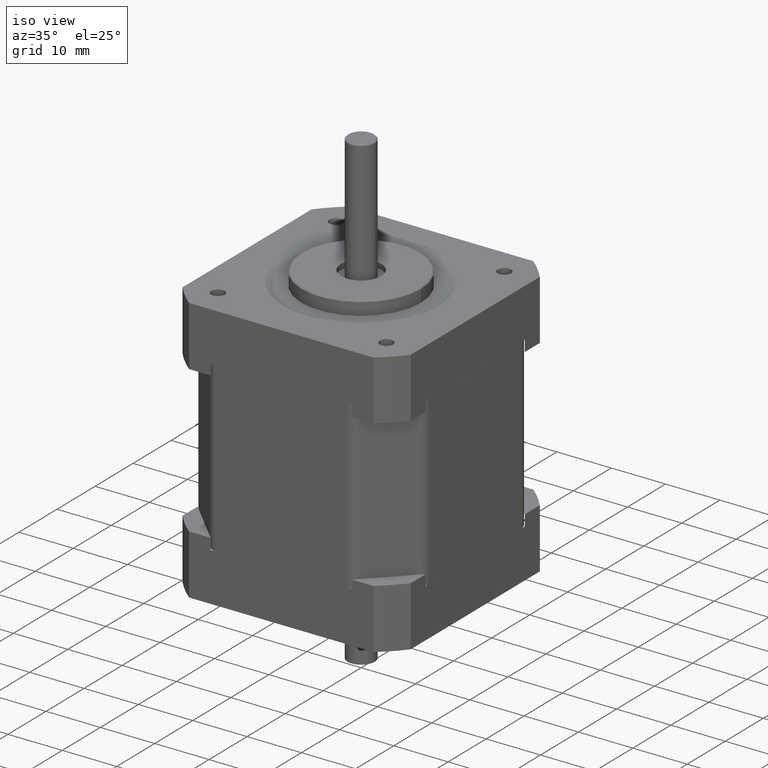
[diagram: clean part render]
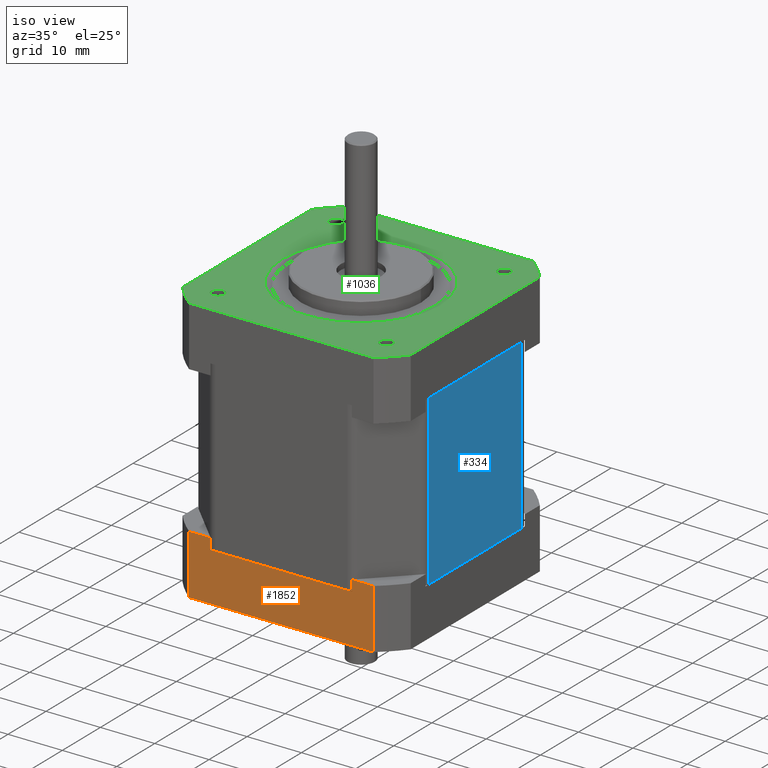
[diagram: same view with three faces highlighted in distinct colors, each labeled with its STEP entity id]
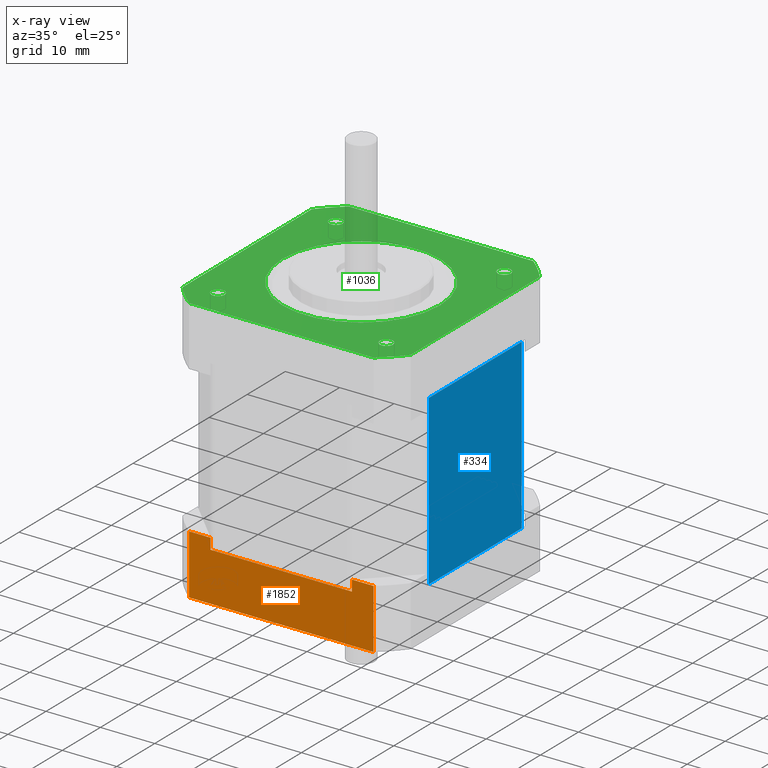
[diagram: x-ray of the same camera — body ghosted, the three highlighted faces saturated]
A machine part, iso view with three faces highlighted in distinct colors.
The next image is the same camera in x-ray (body ghosted, the three faces saturated) — at least one of them is partly hidden behind the body in this view.
Their STEP definitions:

[orange] entity #1852 — the highlighted planar face has unit normal (0, -1, 0).
#1658=CARTESIAN_POINT('',(13.000000000000023,-20.999999999999975,-13.750000000000007));
#1659=VERTEX_POINT('',#1658);
#1666=CARTESIAN_POINT('',(16.970562748477136,-21.000000000000007,-13.750000000000007));
#1667=VERTEX_POINT('',#1666);
#1668=CARTESIAN_POINT('',(13.000000000000023,-20.999999999999975,-13.750000000000007));
#1669=DIRECTION('',(1.0,0.0,0.0));
#1670=VECTOR('',#1669,3.970562748477112);
#1671=LINE('',#1668,#1670);
#1672=EDGE_CURVE('',#1659,#1667,#1671,.T.);
#1690=CARTESIAN_POINT('',(-12.999999999999973,-20.999999999999982,-13.750000000000007));
#1691=VERTEX_POINT('',#1690);
#1708=CARTESIAN_POINT('',(-16.970562748477139,-21.000000000000007,-13.750000000000007));
#1709=VERTEX_POINT('',#1708);
#1717=CARTESIAN_POINT('',(-16.970562748477139,-21.000000000000007,-13.750000000000007));
#1718=DIRECTION('',(1.0,0.0,0.0));
#1719=VECTOR('',#1718,3.970562748477164);
#1720=LINE('',#1717,#1719);
#1721=EDGE_CURVE('',#1709,#1691,#1720,.T.);
#1799=CARTESIAN_POINT('',(-16.970562748477139,-21.000000000000007,-13.750000000000007));
#1800=DIRECTION('',(0.0,-1.0,0.0));
#1801=DIRECTION('',(0.0,0.0,-1.0));
#1802=AXIS2_PLACEMENT_3D('',#1799,#1800,#1801);
#1803=PLANE('',#1802);
#1804=CARTESIAN_POINT('',(13.000000000000023,-20.999999999999975,-15.750000000000007));
#1805=VERTEX_POINT('',#1804);
#1806=CARTESIAN_POINT('',(13.000000000000023,-20.999999999999975,-13.750000000000007));
#1807=DIRECTION('',(0.0,0.0,-1.0));
#1808=VECTOR('',#1807,2.0);
#1809=LINE('',#1806,#1808);
#1810=EDGE_CURVE('',#1659,#1805,#1809,.T.);
#1811=ORIENTED_EDGE('',*,*,#1810,.T.);
#1812=CARTESIAN_POINT('',(-12.999999999999973,-20.999999999999982,-15.750000000000007));
#1813=VERTEX_POINT('',#1812);
#1814=CARTESIAN_POINT('',(13.000000000000023,-20.999999999999975,-15.750000000000007));
#1815=DIRECTION('',(-1.0,0.0,0.0));
#1816=VECTOR('',#1815,25.999999999999996);
#1817=LINE('',#1814,#1816);
#1818=EDGE_CURVE('',#1805,#1813,#1817,.T.);
#1819=ORIENTED_EDGE('',*,*,#1818,.T.);
#1820=CARTESIAN_POINT('',(-12.999999999999973,-20.999999999999982,-15.750000000000007));
#1821=DIRECTION('',(0.0,0.0,1.0));
#1822=VECTOR('',#1821,2.0);
#1823=LINE('',#1820,#1822);
#1824=EDGE_CURVE('',#1813,#1691,#1823,.T.);
#1825=ORIENTED_EDGE('',*,*,#1824,.T.);
#1826=ORIENTED_EDGE('',*,*,#1721,.F.);
#1827=CARTESIAN_POINT('',(-16.970562748477139,-21.000000000000007,-24.750000000000007));
#1828=VERTEX_POINT('',#1827);
#1829=CARTESIAN_POINT('',(-16.970562748477139,-21.000000000000007,-13.750000000000007));
#1830=DIRECTION('',(0.0,0.0,-1.0));
#1831=VECTOR('',#1830,11.0);
#1832=LINE('',#1829,#1831);
#1833=EDGE_CURVE('',#1709,#1828,#1832,.T.);
#1834=ORIENTED_EDGE('',*,*,#1833,.T.);
#1835=CARTESIAN_POINT('',(16.970562748477136,-21.000000000000007,-24.750000000000007));
#1836=VERTEX_POINT('',#1835);
#1837=CARTESIAN_POINT('',(-16.970562748477139,-21.000000000000007,-24.750000000000007));
#1838=DIRECTION('',(1.0,0.0,0.0));
#1839=VECTOR('',#1838,33.941125496954271);
#1840=LINE('',#1837,#1839);
#1841=EDGE_CURVE('',#1828,#1836,#1840,.T.);
#1842=ORIENTED_EDGE('',*,*,#1841,.T.);
#1843=CARTESIAN_POINT('',(16.970562748477136,-21.000000000000007,-13.750000000000007));
#1844=DIRECTION('',(0.0,0.0,-1.0));
#1845=VECTOR('',#1844,11.0);
#1846=LINE('',#1843,#1845);
#1847=EDGE_CURVE('',#1667,#1836,#1846,.T.);
#1848=ORIENTED_EDGE('',*,*,#1847,.F.);
#1849=ORIENTED_EDGE('',*,*,#1672,.F.);
#1850=EDGE_LOOP('',(#1811,#1819,#1825,#1826,#1834,#1842,#1848,#1849));
#1851=FACE_OUTER_BOUND('',#1850,.T.);
#1852=ADVANCED_FACE('',(#1851),#1803,.T.);

[blue] entity #334 — the highlighted planar face has unit normal (1, 0, 0).
#276=CARTESIAN_POINT('',(20.999999999999993,12.171572875253833,15.250000000000011));
#277=VERTEX_POINT('',#276);
#285=CARTESIAN_POINT('',(20.999999999999993,12.171572875253833,-15.750000000000007));
#286=VERTEX_POINT('',#285);
#287=CARTESIAN_POINT('',(20.999999999999993,12.171572875253833,15.250000000000011));
#288=DIRECTION('',(0.0,0.0,-1.0));
#289=VECTOR('',#288,31.000000000000018);
#290=LINE('',#287,#289);
#291=EDGE_CURVE('',#277,#286,#290,.T.);
#304=CARTESIAN_POINT('',(20.999999999999993,13.000000000000025,0.0));
#305=DIRECTION('',(1.0,0.0,0.0));
#306=DIRECTION('',(0.0,0.0,-1.0));
#307=AXIS2_PLACEMENT_3D('',#304,#305,#306);
#308=PLANE('',#307);
#309=CARTESIAN_POINT('',(21.000000000000014,-12.171572875253791,15.250000000000007));
#310=VERTEX_POINT('',#309);
#311=CARTESIAN_POINT('',(20.999999999999993,12.171572875253833,15.250000000000011));
#312=DIRECTION('',(0.0,-1.0,0.0));
#313=VECTOR('',#312,24.343145750507624);
#314=LINE('',#311,#313);
#315=EDGE_CURVE('',#277,#310,#314,.T.);
#316=ORIENTED_EDGE('',*,*,#315,.T.);
#317=CARTESIAN_POINT('',(21.000000000000014,-12.171572875253791,-15.750000000000007));
#318=VERTEX_POINT('',#317);
#319=CARTESIAN_POINT('',(21.000000000000014,-12.171572875253791,-15.750000000000007));
#320=DIRECTION('',(0.0,0.0,1.0));
#321=VECTOR('',#320,31.000000000000014);
#322=LINE('',#319,#321);
#323=EDGE_CURVE('',#318,#310,#322,.T.);
#324=ORIENTED_EDGE('',*,*,#323,.F.);
#325=CARTESIAN_POINT('',(21.000000000000014,-12.171572875253791,-15.750000000000007));
#326=DIRECTION('',(0.0,1.0,0.0));
#327=VECTOR('',#326,24.343145750507624);
#328=LINE('',#325,#327);
#329=EDGE_CURVE('',#318,#286,#328,.T.);
#330=ORIENTED_EDGE('',*,*,#329,.T.);
#331=ORIENTED_EDGE('',*,*,#291,.F.);
#332=EDGE_LOOP('',(#316,#324,#330,#331));
#333=FACE_OUTER_BOUND('',#332,.T.);
#334=ADVANCED_FACE('',(#333),#308,.T.);

[green] entity #1036 — the highlighted planar face has unit normal (0, 0, 1).
#671=CARTESIAN_POINT('',(21.000000000000011,16.970562748477139,24.250000000000007));
#672=VERTEX_POINT('',#671);
#679=CARTESIAN_POINT('',(21.0,-16.970562748477139,24.250000000000007));
#680=VERTEX_POINT('',#679);
#681=CARTESIAN_POINT('',(21.000000000000011,16.970562748477139,24.250000000000007));
#682=DIRECTION('',(0.0,-1.0,0.0));
#683=VECTOR('',#682,33.941125496954278);
#684=LINE('',#681,#683);
#685=EDGE_CURVE('',#672,#680,#684,.T.);
#878=CARTESIAN_POINT('',(-16.970562748477146,21.0,24.250000000000007));
#879=VERTEX_POINT('',#878);
#886=CARTESIAN_POINT('',(16.970562748477139,21.000000000000011,24.250000000000007));
#887=VERTEX_POINT('',#886);
#888=CARTESIAN_POINT('',(-16.970562748477146,21.0,24.250000000000007));
#889=DIRECTION('',(1.0,0.0,0.0));
#890=VECTOR('',#889,33.941125496954285);
#891=LINE('',#888,#890);
#892=EDGE_CURVE('',#879,#887,#891,.T.);
#920=CARTESIAN_POINT('',(14.500000000000007,1.775679E-015,24.250000000000007));
#921=VERTEX_POINT('',#920);
#922=CARTESIAN_POINT('',(-1.403331E-048,-2.692370E-032,24.250000000000007));
#923=DIRECTION('',(0.0,0.0,1.0));
#924=DIRECTION('',(-1.0,0.0,0.0));
#925=AXIS2_PLACEMENT_3D('',#922,#923,#924);
#926=CIRCLE('',#925,14.500000000000007);
#927=EDGE_CURVE('',#921,#921,#926,.T.);
#932=CARTESIAN_POINT('',(4.006830E-016,3.330669E-015,24.250000000000007));
#933=DIRECTION('',(0.0,0.0,1.0));
#934=DIRECTION('',(1.0,0.0,0.0));
#935=AXIS2_PLACEMENT_3D('',#932,#933,#934);
#936=PLANE('',#935);
#937=ORIENTED_EDGE('',*,*,#892,.F.);
#938=CARTESIAN_POINT('',(-21.000000000000011,16.970562748477139,24.250000000000007));
#939=VERTEX_POINT('',#938);
#940=CARTESIAN_POINT('',(-1.403331E-048,-2.692370E-032,24.250000000000007));
#941=DIRECTION('',(-1.253526E-033,1.551160E-033,-1.0));
#942=DIRECTION('',(-0.628539361054709,0.777777777777778,1.994348E-033));
#943=AXIS2_PLACEMENT_3D('',#940,#941,#942);
#944=CIRCLE('',#943,27.0);
#945=EDGE_CURVE('',#939,#879,#944,.T.);
#946=ORIENTED_EDGE('',*,*,#945,.F.);
#947=CARTESIAN_POINT('',(-21.000000000000011,-16.970562748477136,24.250000000000007));
#948=VERTEX_POINT('',#947);
#949=CARTESIAN_POINT('',(-21.000000000000011,-16.970562748477136,24.250000000000007));
#950=DIRECTION('',(0.0,1.0,0.0));
#951=VECTOR('',#950,33.941125496954278);
#952=LINE('',#949,#951);
#953=EDGE_CURVE('',#948,#939,#952,.T.);
#954=ORIENTED_EDGE('',*,*,#953,.F.);
#955=CARTESIAN_POINT('',(-16.970562748477139,-21.0,24.250000000000007));
#956=VERTEX_POINT('',#955);
#957=CARTESIAN_POINT('',(-1.403331E-048,-2.692370E-032,24.250000000000007));
#958=DIRECTION('',(1.253526E-033,1.013002E-033,-1.0));
#959=DIRECTION('',(-0.777777777777778,-0.628539361054709,-1.611677E-033));
#960=AXIS2_PLACEMENT_3D('',#957,#958,#959);
#961=CIRCLE('',#960,27.000000000000014);
#962=EDGE_CURVE('',#956,#948,#961,.T.);
#963=ORIENTED_EDGE('',*,*,#962,.F.);
#964=CARTESIAN_POINT('',(16.970562748477146,-20.999999999999993,24.250000000000007));
#965=VERTEX_POINT('',#964);
#966=CARTESIAN_POINT('',(16.970562748477146,-20.999999999999993,24.250000000000007));
#967=DIRECTION('',(-1.0,0.0,0.0));
#968=VECTOR('',#967,33.941125496954285);
#969=LINE('',#966,#968);
#970=EDGE_CURVE('',#965,#956,#969,.T.);
#971=ORIENTED_EDGE('',*,*,#970,.F.);
#972=CARTESIAN_POINT('',(-1.403331E-048,-2.692370E-032,24.250000000000007));
#973=DIRECTION('',(-1.253526E-033,1.551160E-033,-1.0));
#974=DIRECTION('',(0.628539361054709,-0.777777777777778,-1.994348E-033));
#975=AXIS2_PLACEMENT_3D('',#972,#973,#974);
#976=CIRCLE('',#975,27.0);
#977=EDGE_CURVE('',#680,#965,#976,.T.);
#978=ORIENTED_EDGE('',*,*,#977,.F.);
#979=ORIENTED_EDGE('',*,*,#685,.F.);
#980=CARTESIAN_POINT('',(-1.403331E-048,-2.692370E-032,24.250000000000007));
#981=DIRECTION('',(1.253526E-033,1.013002E-033,-1.0));
#982=DIRECTION('',(0.777777777777778,0.628539361054709,1.611677E-033));
#983=AXIS2_PLACEMENT_3D('',#980,#981,#982);
#984=CIRCLE('',#983,27.000000000000014);
#985=EDGE_CURVE('',#887,#672,#984,.T.);
#986=ORIENTED_EDGE('',*,*,#985,.F.);
#987=EDGE_LOOP('',(#937,#946,#954,#963,#971,#978,#979,#986));
#988=FACE_OUTER_BOUND('',#987,.T.);
#989=CARTESIAN_POINT('',(14.270500000000009,15.500000000000007,24.250000000000007));
#990=VERTEX_POINT('',#989);
#991=CARTESIAN_POINT('',(15.500000000000007,15.500000000000007,24.250000000000007));
#992=DIRECTION('',(0.0,0.0,-1.0));
#993=DIRECTION('',(1.0,0.0,0.0));
#994=AXIS2_PLACEMENT_3D('',#991,#992,#993);
#995=CIRCLE('',#994,1.229500000000000);
#996=EDGE_CURVE('',#990,#990,#995,.T.);
#997=ORIENTED_EDGE('',*,*,#996,.T.);
#998=EDGE_LOOP('',(#997));
#999=FACE_BOUND('',#998,.T.);
#1000=CARTESIAN_POINT('',(-16.729499999999994,15.499999999999996,24.250000000000007));
#1001=VERTEX_POINT('',#1000);
#1002=CARTESIAN_POINT('',(-15.499999999999996,15.499999999999996,24.250000000000007));
#1003=DIRECTION('',(0.0,0.0,-1.0));
#1004=DIRECTION('',(1.0,0.0,0.0));
#1005=AXIS2_PLACEMENT_3D('',#1002,#1003,#1004);
#1006=CIRCLE('',#1005,1.229500000000000);
#1007=EDGE_CURVE('',#1001,#1001,#1006,.T.);
#1008=ORIENTED_EDGE('',*,*,#1007,.T.);
#1009=EDGE_LOOP('',(#1008));
#1010=FACE_BOUND('',#1009,.T.);
#1011=CARTESIAN_POINT('',(14.270500000000009,-15.499999999999996,24.250000000000007));
#1012=VERTEX_POINT('',#1011);
#1013=CARTESIAN_POINT('',(15.500000000000007,-15.499999999999996,24.250000000000007));
#1014=DIRECTION('',(0.0,0.0,-1.0));
#1015=DIRECTION('',(1.0,0.0,0.0));
#1016=AXIS2_PLACEMENT_3D('',#1013,#1014,#1015);
#1017=CIRCLE('',#1016,1.229500000000000);
#1018=EDGE_CURVE('',#1012,#1012,#1017,.T.);
#1019=ORIENTED_EDGE('',*,*,#1018,.T.);
#1020=EDGE_LOOP('',(#1019));
#1021=FACE_BOUND('',#1020,.T.);
#1022=CARTESIAN_POINT('',(-16.729500000000002,-15.500000000000007,24.250000000000007));
#1023=VERTEX_POINT('',#1022);
#1024=CARTESIAN_POINT('',(-15.500000000000000,-15.500000000000007,24.250000000000007));
#1025=DIRECTION('',(0.0,0.0,-1.0));
#1026=DIRECTION('',(1.0,0.0,0.0));
#1027=AXIS2_PLACEMENT_3D('',#1024,#1025,#1026);
#1028=CIRCLE('',#1027,1.229500000000000);
#1029=EDGE_CURVE('',#1023,#1023,#1028,.T.);
#1030=ORIENTED_EDGE('',*,*,#1029,.T.);
#1031=EDGE_LOOP('',(#1030));
#1032=FACE_BOUND('',#1031,.T.);
#1033=ORIENTED_EDGE('',*,*,#927,.F.);
#1034=EDGE_LOOP('',(#1033));
#1035=FACE_BOUND('',#1034,.T.);
#1036=ADVANCED_FACE('',(#988,#999,#1010,#1021,#1032,#1035),#936,.T.);